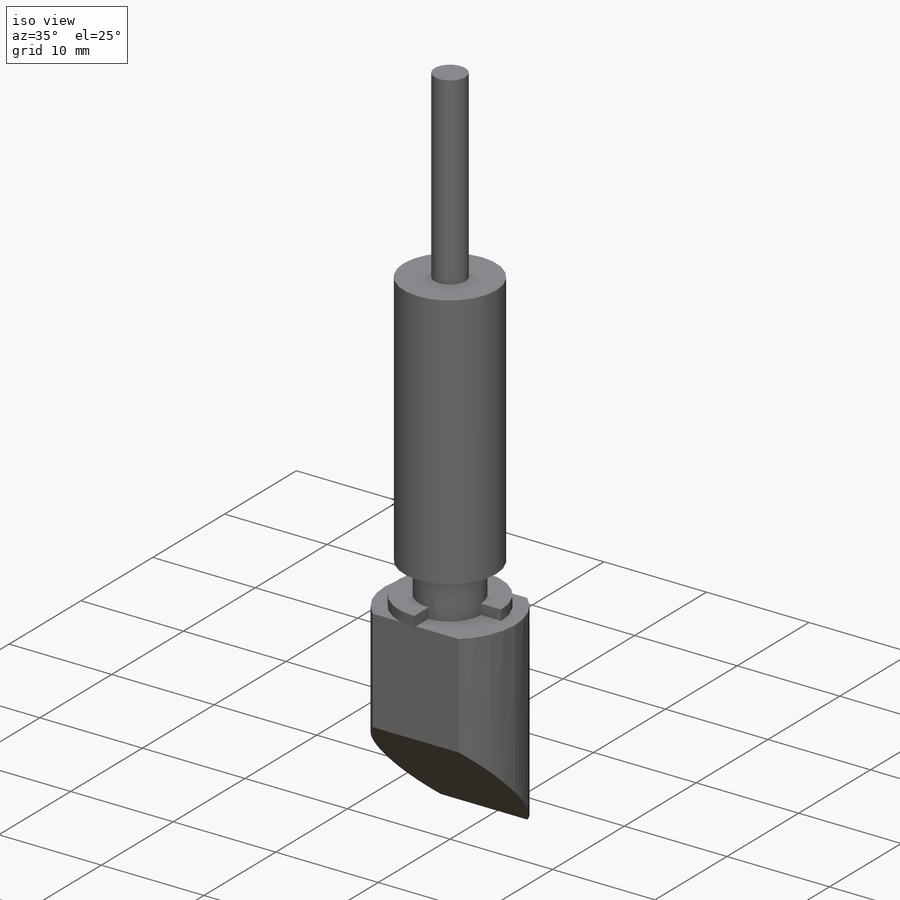
[diagram: iso view]
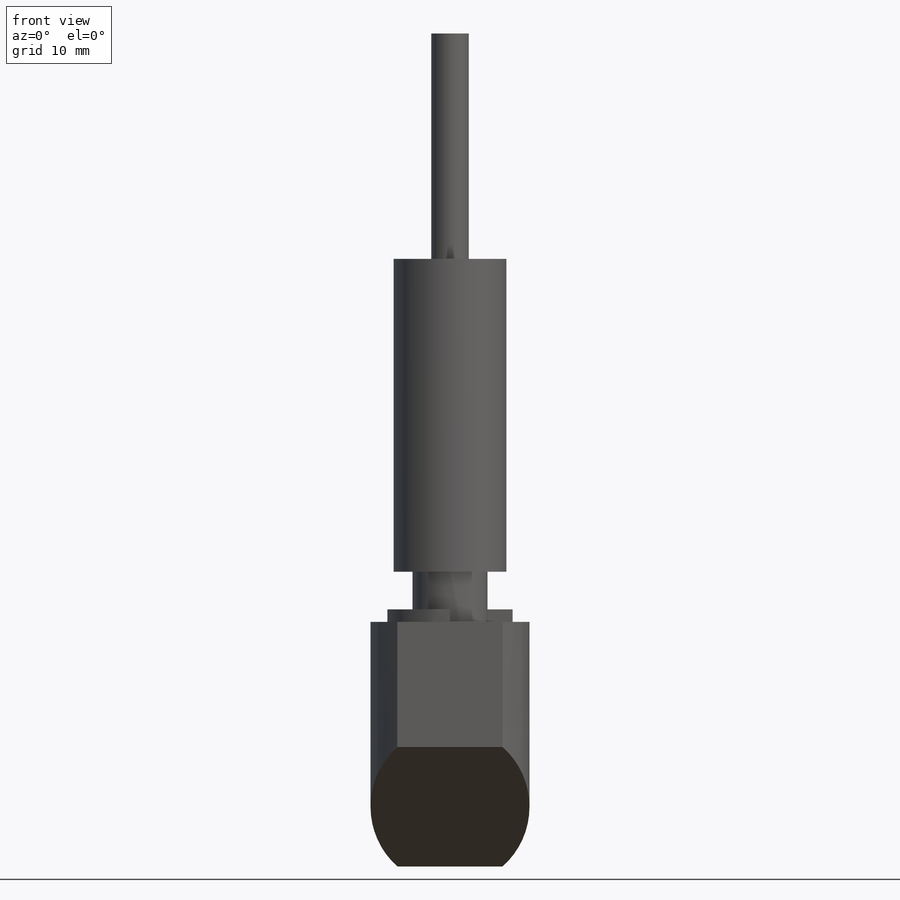
[diagram: front view]
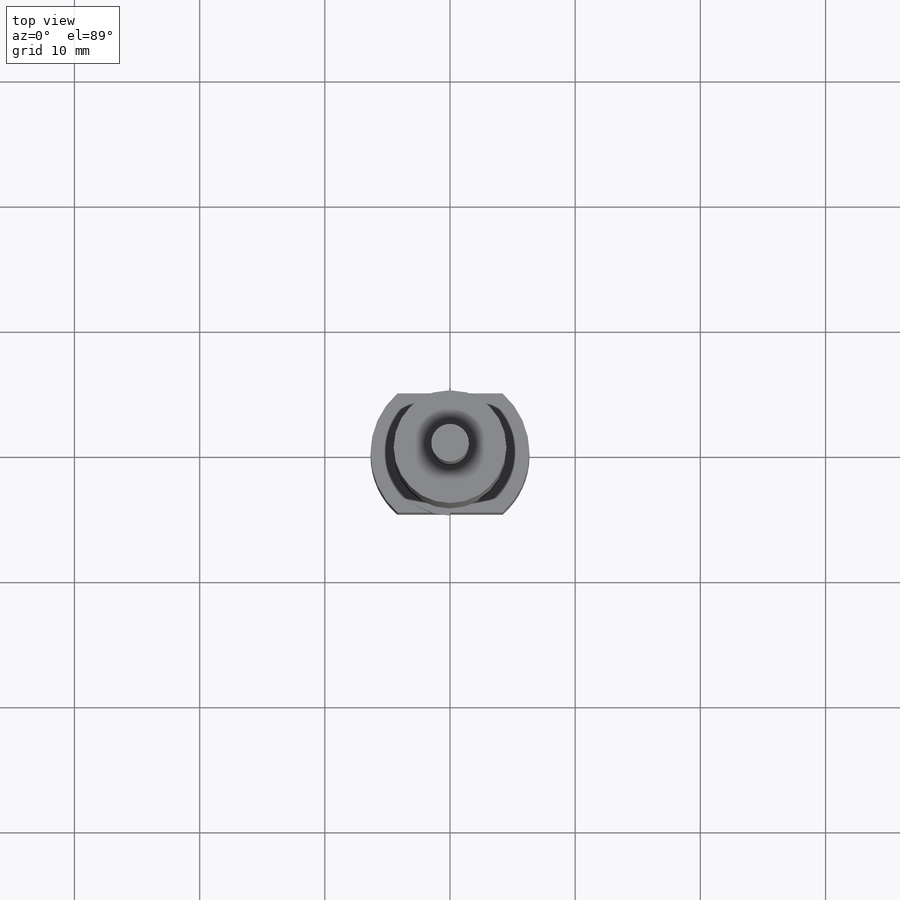
[diagram: top view]
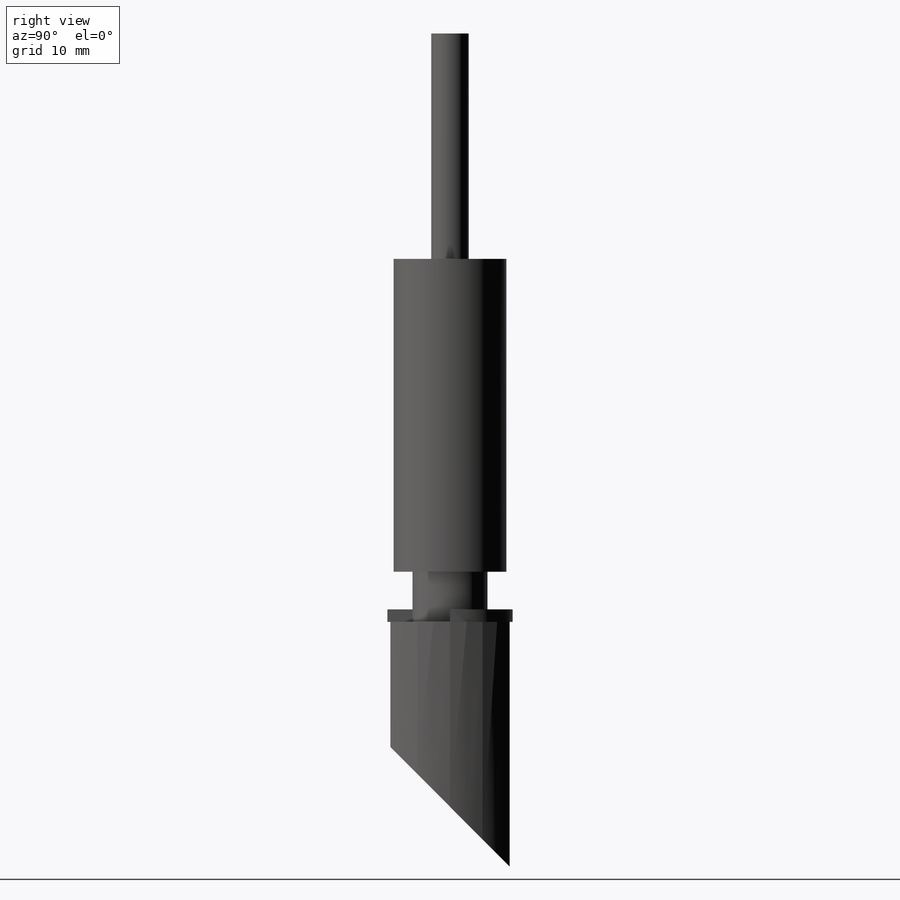
[diagram: right view]
SOLIDWORKS PART (.sldprt)
format: sldprt  version: not decoded by parser v0  size: 179,712 bytes
history: native  units: mm
features: sketch x7, extrude x5, material x1, plane x1, cut_extrude x1 (+13 scaffold rows collapsed)
feature tree (28):
  scaffold x13  (default folders/planes/origin — collapsed)
  material  "Material <not specified>"
  sketch  "Sketch1"  dims[D1=9.0mm]
  extrude  "Boss-Extrude1"  Depth=25mm
  sketch  "Sketch2"  dims[D1=6.0mm]
  extrude  "Boss-Extrude2"  Depth=4mm
  sketch  "Sketch3"  dims[D1=2.0mm]
  extrude  "Boss-Extrude3"  Depth=1mm
  sketch  "Sketch4"  dims[D1=12.7mm]
  extrude  "Boss-Extrude4"  Depth=19.54mm
  sketch  "Sketch5"
  plane  "Plane1"
  sketch  "Sketch6"  dims[c1.D1=10.0mm c1.D2=9.52mm c1.D3=19.54mm c2.D1=10.0mm]
  cut_extrude  "Cut-Extrude1"  Depth=19.54mm
  sketch  "Sketch7"  dims[D1=3.0mm]
  extrude  "Boss-Extrude5"  Depth=18mm
decode coverage: 12 of 13 modeling features carry decoded parameters
note: suppression state not decoded; provenance and decode notes live in map.json
